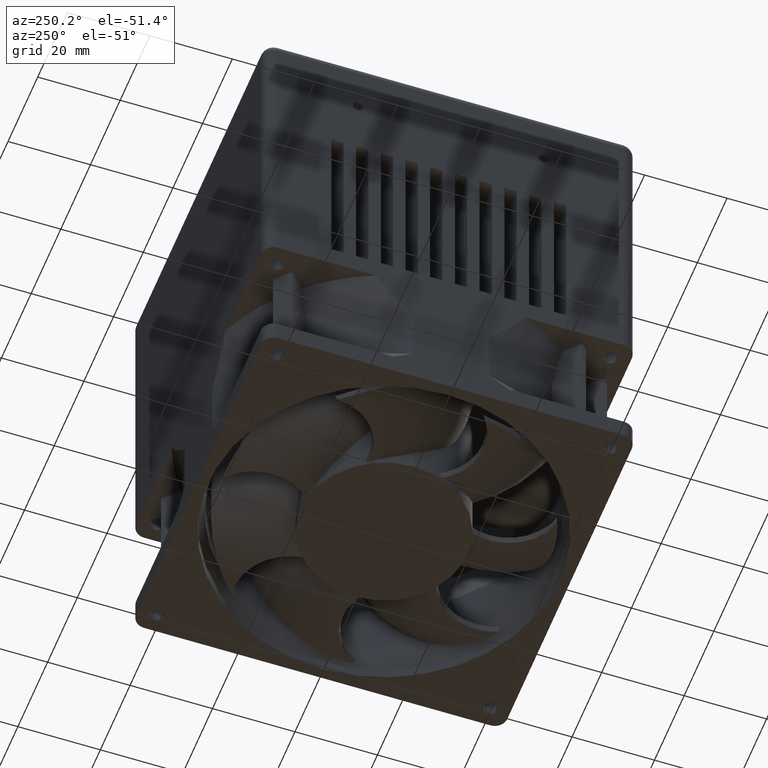
[diagram: clean part render]
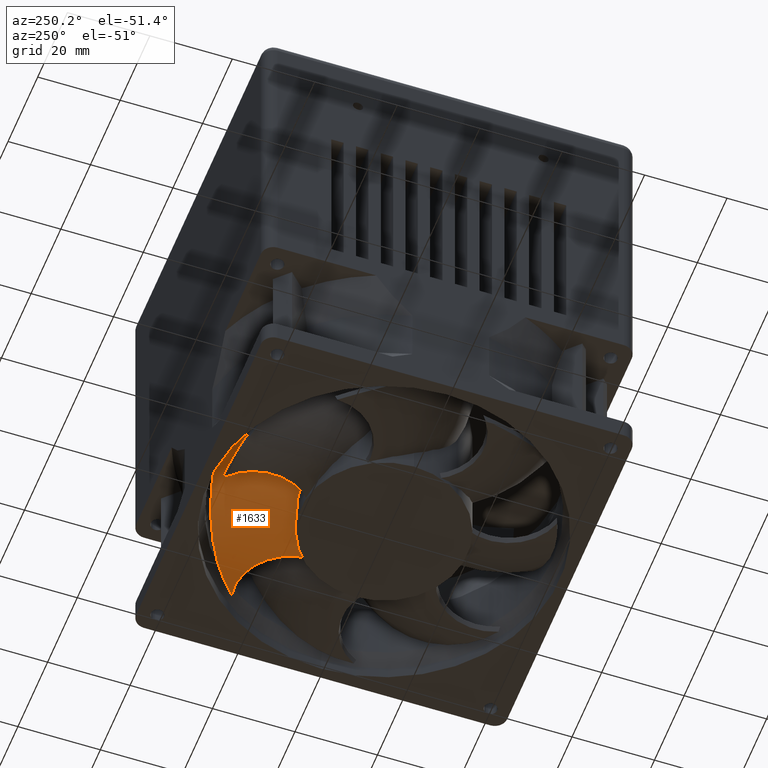
[diagram: same view with one face highlighted and labeled with its STEP entity id]
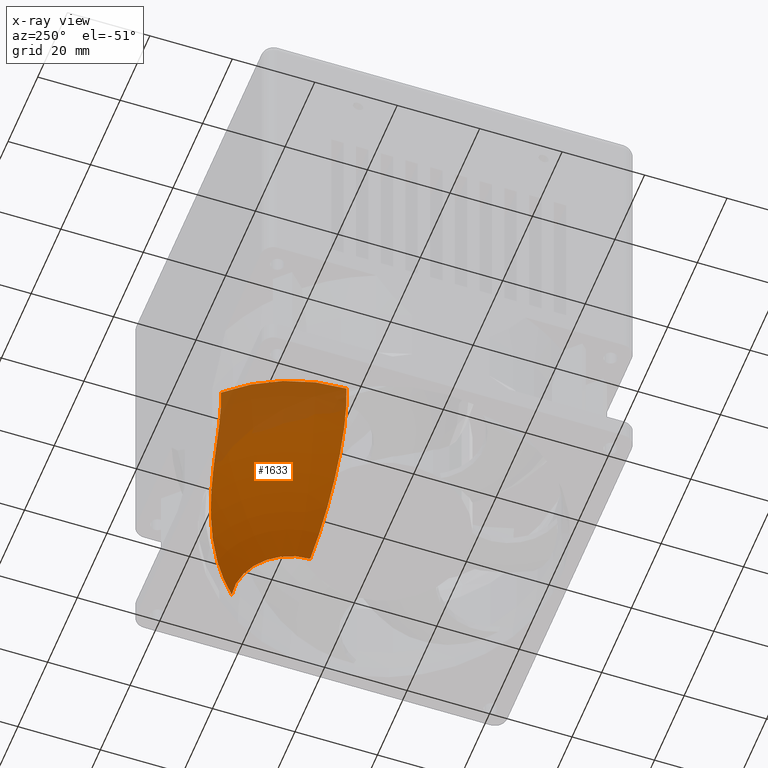
[diagram: x-ray of the same camera — body ghosted, the highlighted face saturated]
A machine part, auxiliary view. The second image highlights one B-rep face of the part: STEP entity #1633.
The next image is the same camera in x-ray: the body ghosted, the highlighted face saturated — about 25% of this face is hidden behind the body in this view.
In plain terms, the highlighted toroidal blend (fillet) surface has major radius 6.3181 mm and minor (blend) radius 31.6893 mm.
Its self-contained STEP definition (entity closure, byte-faithful):
#33 = CARTESIAN_POINT ( 'NONE',  ( 11.41018139141455556, 37.89994263850392286, -28.37189030047688476 ) ) ;
#206 = CARTESIAN_POINT ( 'NONE',  ( 0.8380129028686111869, 39.53855960441016038, -13.00605440266879320 ) ) ;
#477 = FACE_OUTER_BOUND ( 'NONE', #7711, .T. ) ;
#529 = AXIS2_PLACEMENT_3D ( 'NONE', #1184, #4314, #5388 ) ;
#766 = B_SPLINE_CURVE_WITH_KNOTS ( 'NONE', 3,
 ( #7455, #5015, #5823, #3166, #2626, #5600, #206, #2588, #5229, #1395, #4446, #935, #3944, #2172, #3389, #4596, #7009, #1580, #3988, #2422, #2916, #33, #2340, #4142, #7128, #7761, #5945, #6620, #6663, #2384, #5387, #2459, #6026, #2294 ),
 .UNSPECIFIED., .F., .F.,
 ( 4, 2, 2, 2, 2, 2, 2, 2, 2, 2, 2, 2, 2, 2, 2, 2, 4 ),
 ( 1.981257211114753895E-07, 0.006471670923881646213, 0.008089539123421777764, 0.009707407322961908447, 0.01294314372204216808, 0.01617888012112241730, 0.01779674832066253584, 0.01941461652020265785, 0.02265035291928288799, 0.02426822111882299959, 0.02588608931836311119, 0.03235756211652356107, 0.03559329851560379121, 0.03882903491468402135, 0.04530050771284448163, 0.04853624411192471871, 0.05177198051100495579 ),
 .UNSPECIFIED. ) ;
#935 = CARTESIAN_POINT ( 'NONE',  ( 3.961952381552298785, 39.34916667239019006, -19.90335211122503623 ) ) ;
#936 = AXIS2_PLACEMENT_3D ( 'NONE', #3955, #4691, #1666 ) ;
#988 = ORIENTED_EDGE ( 'NONE', *, *, #6197, .T. ) ;
#1146 = CARTESIAN_POINT ( 'NONE',  ( 20.81493162604058256, 13.00000000000000000, -6.607069067807825213 ) ) ;
#1184 = CARTESIAN_POINT ( 'NONE',  ( 27.13307616644972242, 13.00000000000000000, -37.46596508765091471 ) ) ;
#1240 = CARTESIAN_POINT ( 'NONE',  ( -10.75598828885358849, 13.00000000000000000, -3.870165569992971122 ) ) ;
#1263 = VERTEX_POINT ( 'NONE', #4898 ) ;
#1270 = DIRECTION ( 'NONE',  ( 0.000000000000000000, 0.000000000000000000, -1.000000000000000000 ) ) ;
#1287 = VERTEX_POINT ( 'NONE', #1240 ) ;
#1395 = CARTESIAN_POINT ( 'NONE',  ( 2.608343071957595072, 39.46355649148608080, -17.54263143431893113 ) ) ;
#1580 = CARTESIAN_POINT ( 'NONE',  ( 7.933136362852565959, 38.74500328736749566, -25.01800032415079755 ) ) ;
#1633 = ADVANCED_FACE ( 'NONE', ( #477 ), #2219, .T. ) ;
#1666 = DIRECTION ( 'NONE',  ( -1.000000000000000000, 0.000000000000000000, -3.469446951953614189E-18 ) ) ;
#1838 = EDGE_CURVE ( 'NONE', #1263, #1287, #6383, .T. ) ;
#2172 = CARTESIAN_POINT ( 'NONE',  ( 4.866348964590888393, 39.24776038132623057, -21.26226631739348605 ) ) ;
#2219 = TOROIDAL_SURFACE ( 'NONE', #936, 6.318144540409138976, 31.68932982928184572 ) ;
#2294 = CARTESIAN_POINT ( 'NONE',  ( 29.52347268809064929, 26.31232520496522298, -37.46596508765091471 ) ) ;
#2314 = AXIS2_PLACEMENT_3D ( 'NONE', #7190, #4669, #4705 ) ;
#2340 = CARTESIAN_POINT ( 'NONE',  ( 13.05468302041227169, 37.37467339009884881, -29.67269570411033186 ) ) ;
#2384 = CARTESIAN_POINT ( 'NONE',  ( 25.70761088597048882, 30.06963264781035505, -36.41180830840802685 ) ) ;
#2422 = CARTESIAN_POINT ( 'NONE',  ( 9.061245874909049647, 38.49699253445609060, -26.17233802616801697 ) ) ;
#2459 = CARTESIAN_POINT ( 'NONE',  ( 28.05527186089539882, 27.89294617341347404, -37.12148506400364312 ) ) ;
#2588 = CARTESIAN_POINT ( 'NONE',  ( 1.322188322381787629, 39.52631997971457878, -14.56373664338675589 ) ) ;
#2626 = CARTESIAN_POINT ( 'NONE',  ( 0.4392442018452331620, 39.54487392327088457, -11.41359048437680812 ) ) ;
#2916 = CARTESIAN_POINT ( 'NONE',  ( 9.449034984316902808, 38.40382317887897301, -26.54765534918109182 ) ) ;
#3166 = CARTESIAN_POINT ( 'NONE',  ( 0.3314773780210686915, 39.54582019157142980, -10.87992882284130403 ) ) ;
#3389 = CARTESIAN_POINT ( 'NONE',  ( 5.181748710173837758, 39.20754063870191430, -21.70244080133679887 ) ) ;
#3692 = CARTESIAN_POINT ( 'NONE',  ( 29.52347268809064929, 26.31232520496522298, -37.46596508765091471 ) ) ;
#3944 = CARTESIAN_POINT ( 'NONE',  ( 4.256767712844077067, 39.31854493536179262, -20.36325359978074445 ) ) ;
#3955 = CARTESIAN_POINT ( 'NONE',  ( 27.13307616644972242, 13.00000000000000000, -6.607069067807825213 ) ) ;
#3966 = VERTEX_POINT ( 'NONE', #4703 ) ;
#3988 = CARTESIAN_POINT ( 'NONE',  ( 8.303752302859592760, 38.66745800665305666, -25.40791584693484850 ) ) ;
#4134 = VERTEX_POINT ( 'NONE', #3692 ) ;
#4142 = CARTESIAN_POINT ( 'NONE',  ( 15.58962315674600241, 36.35611107802733954, -31.42306409760644570 ) ) ;
#4261 = EDGE_CURVE ( 'NONE', #3966, #4134, #766, .T. ) ;
#4314 = DIRECTION ( 'NONE',  ( 3.469446951953614189E-18, 0.000000000000000000, -1.000000000000000000 ) ) ;
#4330 = CIRCLE ( 'NONE', #529, 13.52523559474753512 ) ;
#4446 = CARTESIAN_POINT ( 'NONE',  ( 3.116645819898629544, 39.42817222501417262, -18.50130434507895671 ) ) ;
#4596 = CARTESIAN_POINT ( 'NONE',  ( 6.157435108677113078, 39.07033851449186557, -22.99659408642557779 ) ) ;
#4669 = DIRECTION ( 'NONE',  ( 3.469446951953614189E-18, 0.000000000000000000, -1.000000000000000000 ) ) ;
#4691 = DIRECTION ( 'NONE',  ( 3.469446951953614189E-18, 0.000000000000000000, -1.000000000000000000 ) ) ;
#4703 = CARTESIAN_POINT ( 'NONE',  ( 0.09904669495970630511, 39.54698581445241246, -3.870165569992971122 ) ) ;
#4705 = DIRECTION ( 'NONE',  ( -1.000000000000000000, 0.000000000000000000, 0.000000000000000000 ) ) ;
#4898 = CARTESIAN_POINT ( 'NONE',  ( 13.60784057170218553, 13.00000000000000000, -37.46596508765091471 ) ) ;
#5015 = CARTESIAN_POINT ( 'NONE',  ( -0.1648776427292161229, 39.54764682142499055, -6.047729381260810833 ) ) ;
#5229 = CARTESIAN_POINT ( 'NONE',  ( 1.711135666707490177, 39.51262784563769515, -15.57383841940835190 ) ) ;
#5387 = CARTESIAN_POINT ( 'NONE',  ( 26.50879495395390961, 29.36662247366760070, -36.67297233260500633 ) ) ;
#5388 = DIRECTION ( 'NONE',  ( -1.000000000000000000, 0.000000000000000000, 0.000000000000000000 ) ) ;
#5600 = CARTESIAN_POINT ( 'NONE',  ( 0.6929252836135078031, 39.54124231264837164, -12.47855729878531150 ) ) ;
#5727 = CIRCLE ( 'NONE', #2314, 37.88906445530330558 ) ;
#5823 = CARTESIAN_POINT ( 'NONE',  ( -0.1122095408695673174, 39.54854359131973496, -8.205744206433601917 ) ) ;
#5945 = CARTESIAN_POINT ( 'NONE',  ( 19.04007646164181722, 34.67598749184404738, -33.48410331278881102 ) ) ;
#6026 = CARTESIAN_POINT ( 'NONE',  ( 28.80300192423734984, 27.12072198303397741, -37.30987481797505723 ) ) ;
#6197 = EDGE_CURVE ( 'NONE', #1287, #3966, #5727, .T. ) ;
#6329 = ORIENTED_EDGE ( 'NONE', *, *, #4261, .T. ) ;
#6383 = CIRCLE ( 'NONE', #7265, 31.68932982928185282 ) ;
#6620 = CARTESIAN_POINT ( 'NONE',  ( 21.59990561392053365, 33.18609447493994935, -34.80014995025696578 ) ) ;
#6663 = CARTESIAN_POINT ( 'NONE',  ( 23.27388043519247418, 32.04155205158512132, -35.52688506911708544 ) ) ;
#6669 = ORIENTED_EDGE ( 'NONE', *, *, #1838, .T. ) ;
#6710 = DIRECTION ( 'NONE',  ( 0.000000000000000000, 1.000000000000000000, 0.000000000000000000 ) ) ;
#7009 = CARTESIAN_POINT ( 'NONE',  ( 6.847115045478629369, 38.95683576657707903, -23.82428249980948110 ) ) ;
#7060 = ORIENTED_EDGE ( 'NONE', *, *, #7617, .F. ) ;
#7128 = CARTESIAN_POINT ( 'NONE',  ( 16.44621503107543958, 35.97808504238775384, -31.97269009776838899 ) ) ;
#7190 = CARTESIAN_POINT ( 'NONE',  ( 27.13307616644972242, 13.00000000000000000, -3.870165569992971122 ) ) ;
#7265 = AXIS2_PLACEMENT_3D ( 'NONE', #1146, #6710, #1270 ) ;
#7455 = CARTESIAN_POINT ( 'NONE',  ( 0.09904669495970630511, 39.54698581445241246, -3.870165569992971122 ) ) ;
#7617 = EDGE_CURVE ( 'NONE', #1263, #4134, #4330, .T. ) ;
#7711 = EDGE_LOOP ( 'NONE', ( #988, #6329, #7060, #6669 ) ) ;
#7761 = CARTESIAN_POINT ( 'NONE',  ( 18.17724626339036220, 35.13528583127961014, -33.00672303262000185 ) ) ;